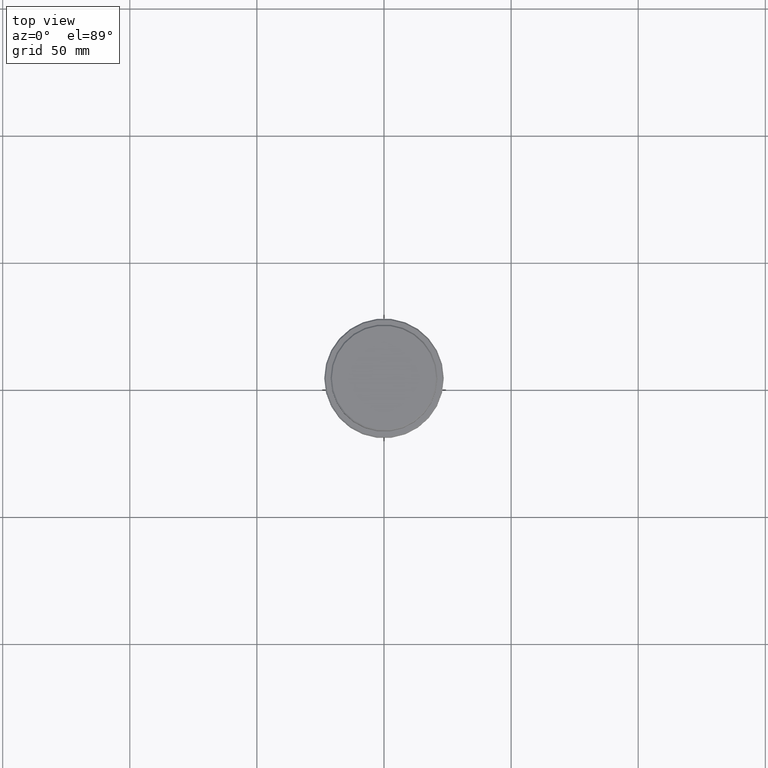
[diagram: clean part render]
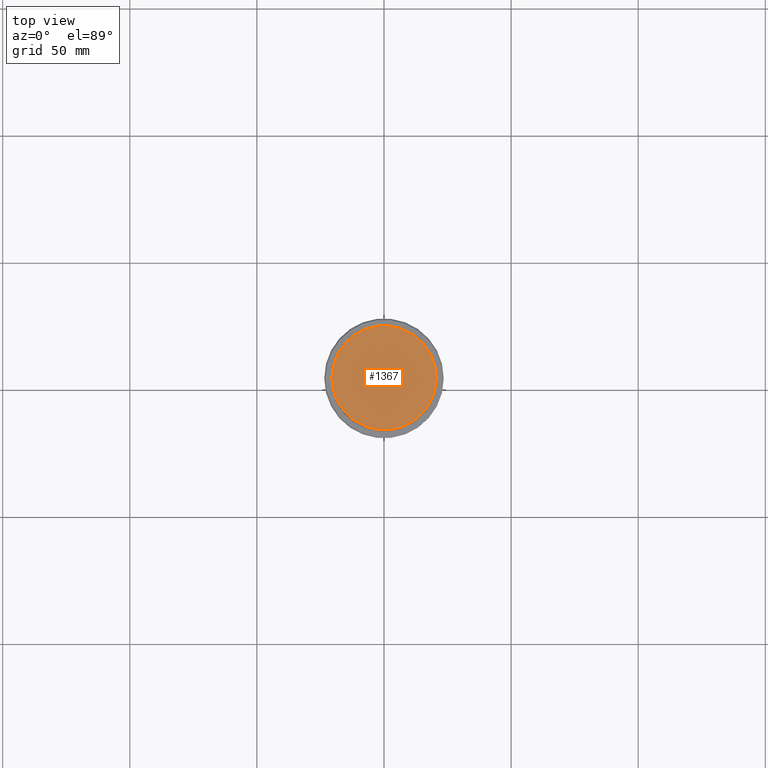
[diagram: same view with one face highlighted and labeled with its STEP entity id]
A machine part, top view. The second image highlights one B-rep face of the part: STEP entity #1367.
In plain terms, the highlighted planar face has unit normal (0, -0, 1).
Its self-contained STEP definition (entity closure, byte-faithful):
#212 = CARTESIAN_POINT ( 'NONE',  ( 0.000000000000000000, 0.000000000000000000, 0.000000000000000000 ) ) ;
#243 = EDGE_CURVE ( 'NONE', #1256, #780, #1310, .T. ) ;
#268 = DIRECTION ( 'NONE',  ( 1.000000000000000000, 0.000000000000000000, 0.000000000000000000 ) ) ;
#287 = CARTESIAN_POINT ( 'NONE',  ( -20.50000000000004619, 0.000000000000000000, 0.000000000000000000 ) ) ;
#312 = DIRECTION ( 'NONE',  ( -0.000000000000000000, -0.000000000000000000, 1.000000000000000000 ) ) ;
#367 = PLANE ( 'NONE',  #1292 ) ;
#381 = AXIS2_PLACEMENT_3D ( 'NONE', #212, #312, #649 ) ;
#427 = DIRECTION ( 'NONE',  ( 1.000000000000000000, 0.000000000000000000, 0.000000000000000000 ) ) ;
#649 = DIRECTION ( 'NONE',  ( 1.000000000000000000, 0.000000000000000000, 0.000000000000000000 ) ) ;
#762 = DIRECTION ( 'NONE',  ( -0.000000000000000000, -0.000000000000000000, 1.000000000000000000 ) ) ;
#780 = VERTEX_POINT ( 'NONE', #287 ) ;
#877 = CARTESIAN_POINT ( 'NONE',  ( 0.000000000000000000, 0.000000000000000000, 0.000000000000000000 ) ) ;
#1079 = ORIENTED_EDGE ( 'NONE', *, *, #243, .T. ) ;
#1193 = EDGE_CURVE ( 'NONE', #780, #1256, #1315, .T. ) ;
#1208 = ORIENTED_EDGE ( 'NONE', *, *, #1193, .T. ) ;
#1248 = EDGE_LOOP ( 'NONE', ( #1208, #1079 ) ) ;
#1251 = DIRECTION ( 'NONE',  ( 0.000000000000000000, -0.000000000000000000, 1.000000000000000000 ) ) ;
#1256 = VERTEX_POINT ( 'NONE', #1321 ) ;
#1260 = CARTESIAN_POINT ( 'NONE',  ( 0.000000000000000000, 0.000000000000000000, 0.000000000000000000 ) ) ;
#1270 = AXIS2_PLACEMENT_3D ( 'NONE', #877, #762, #427 ) ;
#1292 = AXIS2_PLACEMENT_3D ( 'NONE', #1260, #1251, #268 ) ;
#1310 = CIRCLE ( 'NONE', #381, 20.50000000000004619 ) ;
#1315 = CIRCLE ( 'NONE', #1270, 20.50000000000004619 ) ;
#1321 = CARTESIAN_POINT ( 'NONE',  ( 20.50000000000004619, 2.541142108230760635E-15, 0.000000000000000000 ) ) ;
#1359 = FACE_OUTER_BOUND ( 'NONE', #1248, .T. ) ;
#1367 = ADVANCED_FACE ( 'NONE', ( #1359 ), #367, .T. ) ;